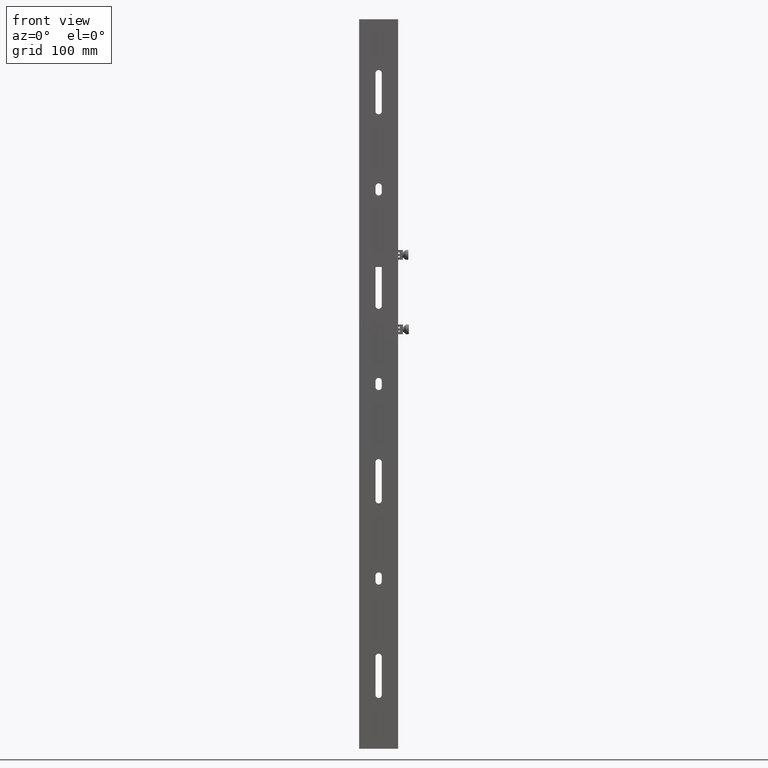
[diagram: clean part render]
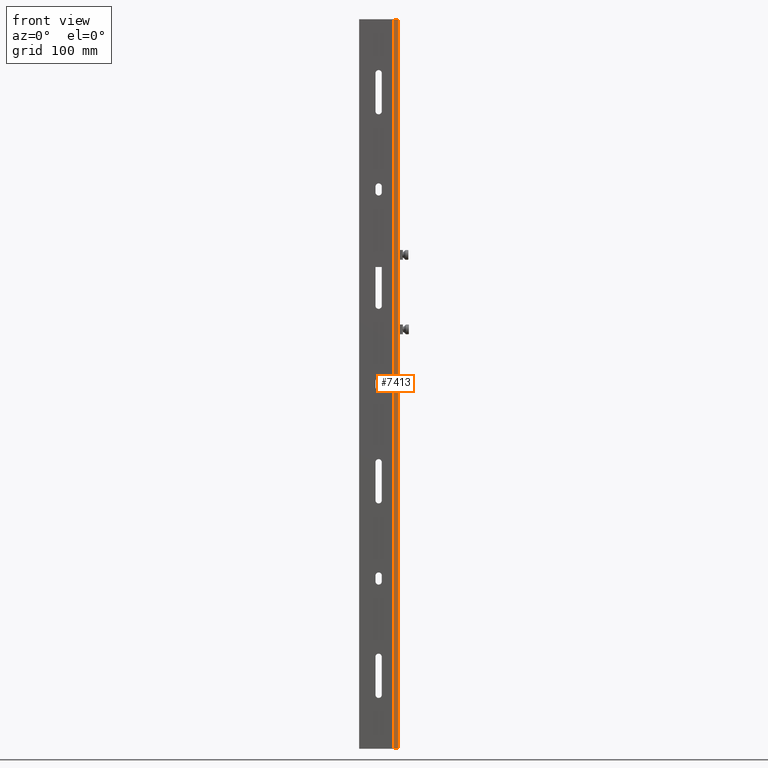
[diagram: same view with one face highlighted and labeled with its STEP entity id]
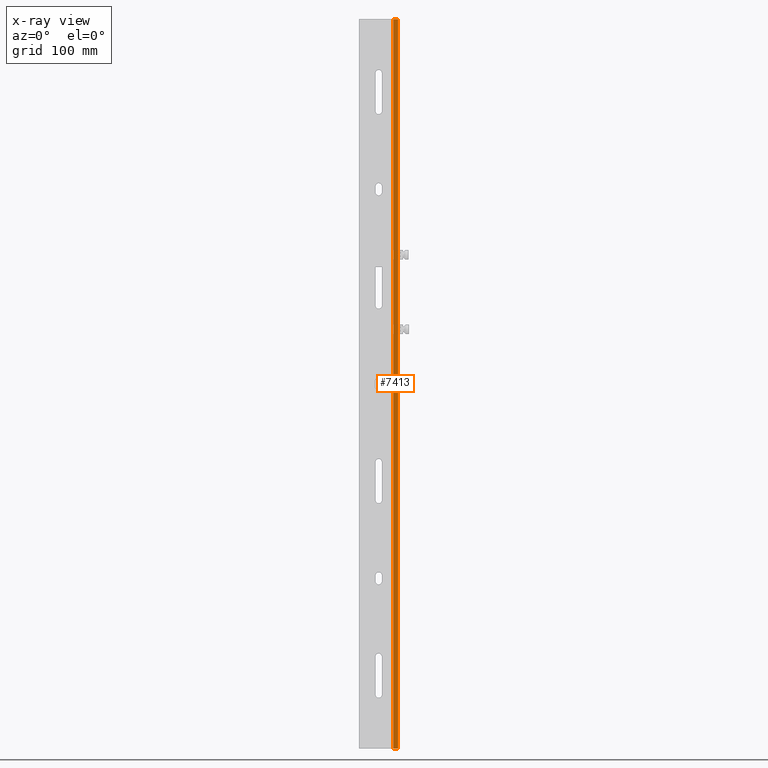
[diagram: x-ray of the same camera — body ghosted, the highlighted face saturated]
A machine part, front view. The second image highlights one B-rep face of the part: STEP entity #7413.
The next image is the same camera in x-ray: the body ghosted, the highlighted face saturated — about 0% of this face is hidden behind the body in this view.
In plain terms, the highlighted planar face has unit normal (-0, 1, 0).
Its self-contained STEP definition (entity closure, byte-faithful):
#68 = PLANE ( 'NONE',  #222 ) ;
#222 = AXIS2_PLACEMENT_3D ( 'NONE', #1341, #3796, #5524 ) ;
#1231 = VERTEX_POINT ( 'NONE', #5664 ) ;
#1341 = CARTESIAN_POINT ( 'NONE',  ( -19.99999999999999645, 375.0000000000000000, 6.499999999999999112 ) ) ;
#1390 = LINE ( 'NONE', #3849, #3415 ) ;
#1593 = LINE ( 'NONE', #6004, #6147 ) ;
#1836 = CARTESIAN_POINT ( 'NONE',  ( 20.00000000000000355, -375.0000000000000000, 6.499999999999993783 ) ) ;
#1854 = CARTESIAN_POINT ( 'NONE',  ( 20.00000000000000355, 375.0000000000000000, 6.499999999999993783 ) ) ;
#1855 = EDGE_CURVE ( 'NONE', #5415, #2392, #6073, .T. ) ;
#2223 = DIRECTION ( 'NONE',  ( 1.000000000000000000, 0.000000000000000000, -1.301042606982605321E-16 ) ) ;
#2315 = ORIENTED_EDGE ( 'NONE', *, *, #6071, .F. ) ;
#2392 = VERTEX_POINT ( 'NONE', #1836 ) ;
#2614 = LINE ( 'NONE', #7487, #5640 ) ;
#2874 = VERTEX_POINT ( 'NONE', #1854 ) ;
#3415 = VECTOR ( 'NONE', #5712, 1000.000000000000000 ) ;
#3440 = ORIENTED_EDGE ( 'NONE', *, *, #5653, .F. ) ;
#3796 = DIRECTION ( 'NONE',  ( -1.301042606982605321E-16, 0.000000000000000000, -1.000000000000000000 ) ) ;
#3849 = CARTESIAN_POINT ( 'NONE',  ( 20.00000000000000355, 375.0000000000000000, 6.499999999999993783 ) ) ;
#3910 = ORIENTED_EDGE ( 'NONE', *, *, #1855, .T. ) ;
#4051 = DIRECTION ( 'NONE',  ( 1.000000000000000000, 0.000000000000000000, -1.301042606982605321E-16 ) ) ;
#4163 = CARTESIAN_POINT ( 'NONE',  ( -19.99999999999999645, -375.0000000000000000, 6.499999999999999112 ) ) ;
#4437 = DIRECTION ( 'NONE',  ( -0.000000000000000000, 1.000000000000000000, -0.000000000000000000 ) ) ;
#4584 = EDGE_CURVE ( 'NONE', #5415, #1231, #2614, .T. ) ;
#4866 = CARTESIAN_POINT ( 'NONE',  ( 15.00000000000000178, -375.0000000000000000, 6.499999999999996447 ) ) ;
#5415 = VERTEX_POINT ( 'NONE', #4866 ) ;
#5524 = DIRECTION ( 'NONE',  ( -1.000000000000000000, 0.000000000000000000, 1.301042606982605321E-16 ) ) ;
#5640 = VECTOR ( 'NONE', #4437, 1000.000000000000000 ) ;
#5653 = EDGE_CURVE ( 'NONE', #2874, #2392, #1390, .T. ) ;
#5664 = CARTESIAN_POINT ( 'NONE',  ( 15.00000000000000178, 375.0000000000000000, 6.499999999999996447 ) ) ;
#5712 = DIRECTION ( 'NONE',  ( -0.000000000000000000, -1.000000000000000000, -0.000000000000000000 ) ) ;
#5906 = EDGE_LOOP ( 'NONE', ( #2315, #6575, #3910, #3440 ) ) ;
#6004 = CARTESIAN_POINT ( 'NONE',  ( -19.99999999999999645, 375.0000000000000000, 6.499999999999999112 ) ) ;
#6071 = EDGE_CURVE ( 'NONE', #1231, #2874, #1593, .T. ) ;
#6073 = LINE ( 'NONE', #4163, #6875 ) ;
#6124 = FACE_OUTER_BOUND ( 'NONE', #5906, .T. ) ;
#6147 = VECTOR ( 'NONE', #4051, 1000.000000000000000 ) ;
#6575 = ORIENTED_EDGE ( 'NONE', *, *, #4584, .F. ) ;
#6875 = VECTOR ( 'NONE', #2223, 1000.000000000000000 ) ;
#7413 = ADVANCED_FACE ( 'NONE', ( #6124 ), #68, .F. ) ;
#7487 = CARTESIAN_POINT ( 'NONE',  ( 15.00000000000000178, 375.0000000000000000, 6.499999999999996447 ) ) ;